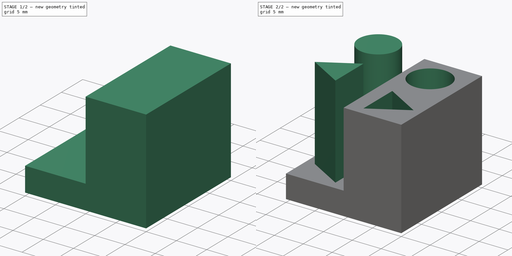
[diagram: build sequence overview — one tinted view per stage of 2, left to right]
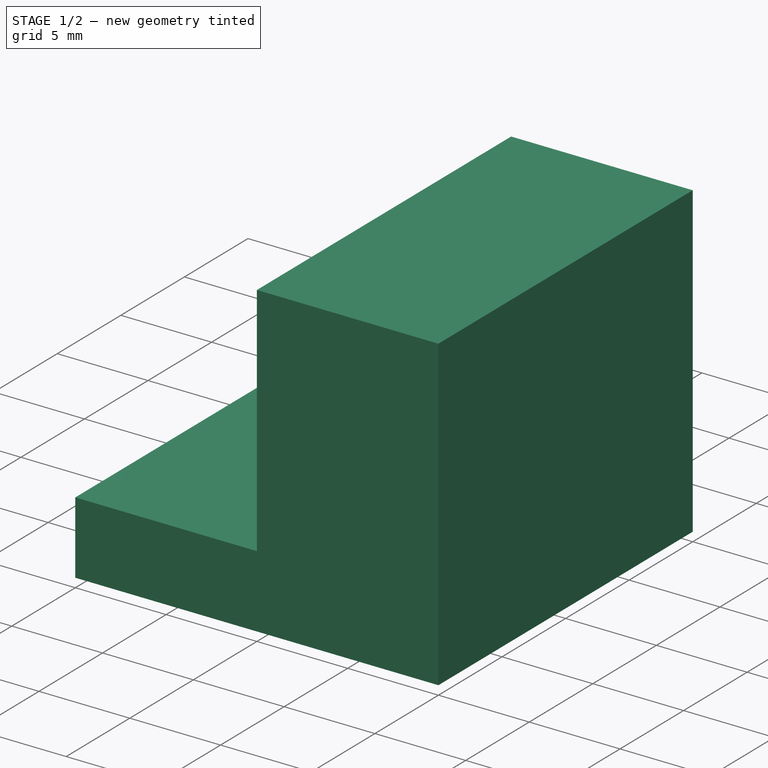
[diagram: stage 1 of 2 — iso view after this stage's code; geometry added in this stage tinted green]
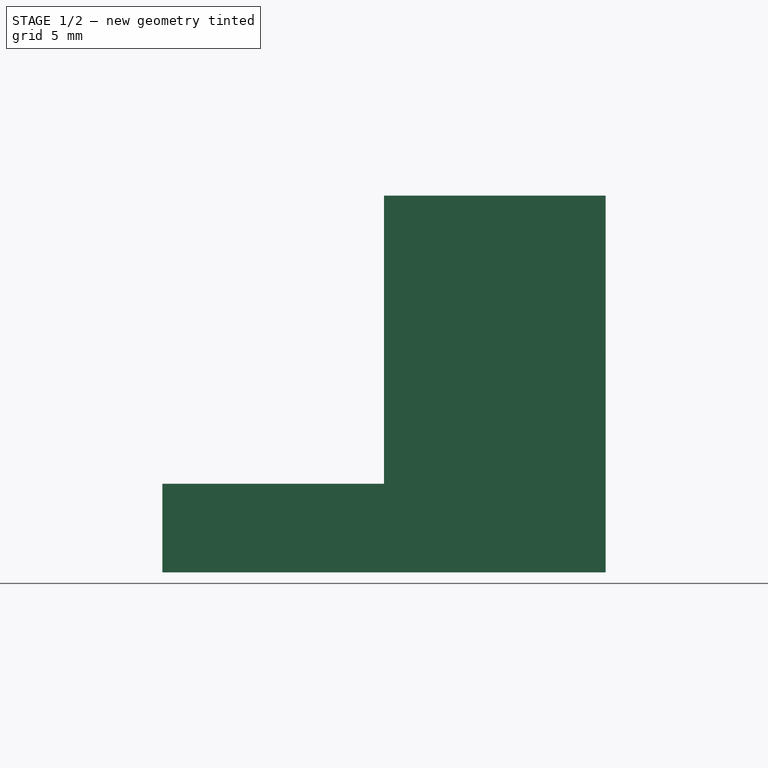
[diagram: stage 1 of 2 — front view after this stage's code; geometry added in this stage tinted green]
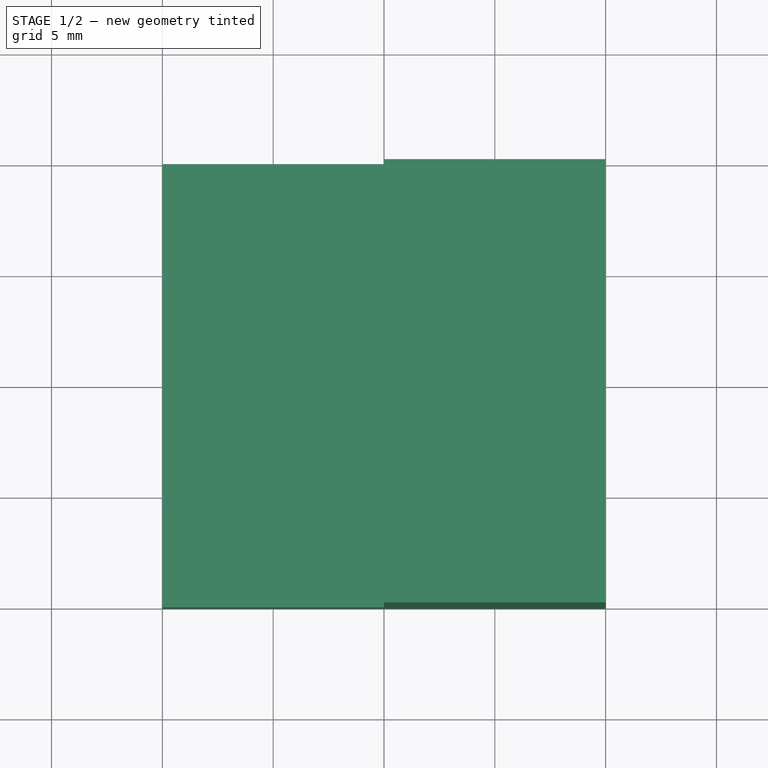
[diagram: stage 1 of 2 — top view after this stage's code; geometry added in this stage tinted green]
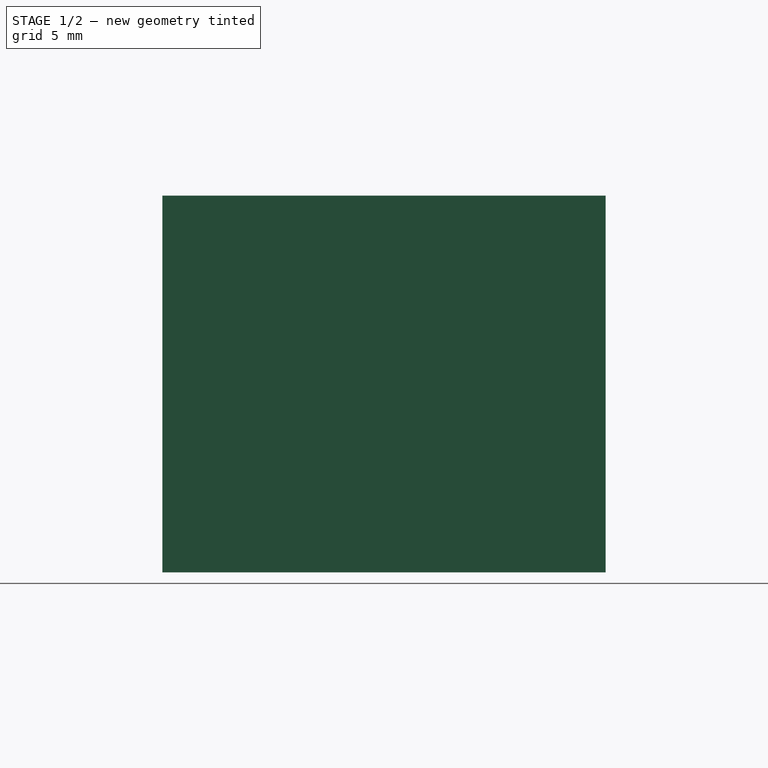
[diagram: stage 1 of 2 — right view after this stage's code; geometry added in this stage tinted green]
FCSTD DOCUMENT  (FreeCAD 0.14R2800 (Git))
Label: test-part
License: CC-BY 3.0
LicenseURL: http://creativecommons.org/licenses/by/3.0/
objects: Sketcher::SketchObject×4, PartDesign::Pad×3, PartDesign::Pocket×1
note: 12 computed .brp shape members not serialized (recipe doc carries the construction recipe); baked Part::Feature solids carry a one-line shape summary decoded from their .brp

FEATURE [Sketcher::SketchObject] Sketch  label="Base"
  sketch-geometry (4):
    g0: LineSegment StartX=-10 StartY=10 StartZ=0 EndX=10 EndY=10 EndZ=0
    g1: LineSegment StartX=10 StartY=10 StartZ=0 EndX=10 EndY=-10 EndZ=0
    g2: LineSegment StartX=10 StartY=-10 StartZ=0 EndX=-10 EndY=-10 EndZ=0
    g3: LineSegment StartX=-10 StartY=-10 StartZ=0 EndX=-10 EndY=10 EndZ=0
  constraints (12):
    c: Coincident(g0,g1)
    c: Coincident(g1,g2)
    c: Coincident(g2,g3)
    c: Coincident(g3,g0)
    c: Horizontal(g0)
    c: Vertical(g1)
    c: Equal(g0,g1)
    c: Equal(g1,g2)
    c: Equal(g2,g3)
    c: Symmetric(g1,g0,g-1)
    c: Symmetric(g0,g0,g-2)
    c: DistanceY(g1) = -20
FEATURE [PartDesign::Pad] Pad  label="Base-pad"
  Length = 4
  Length2 = 100
  Sketch = -> Sketch
  Type = 0
FEATURE [Sketcher::SketchObject] Sketch001  label="Surround"
  ExternalGeometry = -> [Pad]
  Placement = pos=(0,0,4) rot=(0,0,1;0rad)
  Support = -> Pad [Face6]
  sketch-geometry (4):
    g0: LineSegment StartX=0 StartY=10 StartZ=0 EndX=10 EndY=10 EndZ=0
    g1: LineSegment StartX=10 StartY=10 StartZ=0 EndX=10 EndY=-10 EndZ=0
    g2: LineSegment StartX=10 StartY=-10 StartZ=0 EndX=0 EndY=-10 EndZ=0
    g3: LineSegment StartX=0 StartY=-10 StartZ=0 EndX=0 EndY=10 EndZ=0
  constraints (10):
    c: Coincident(g0,g1)
    c: Coincident(g1,g2)
    c: Coincident(g2,g3)
    c: Coincident(g3,g0)
    c: Coincident(g0,g-3)
    c: Coincident(g1,g-3)
    c: Horizontal(g0)
    c: Horizontal(g2)
    c: Vertical(g3)
    c: DistanceX(g-1,g0) = 0
FEATURE [PartDesign::Pad] Pad001  label="Surround-pad"
  Length = 13
  Length2 = 100
  Sketch = -> Sketch001
  Type = 0
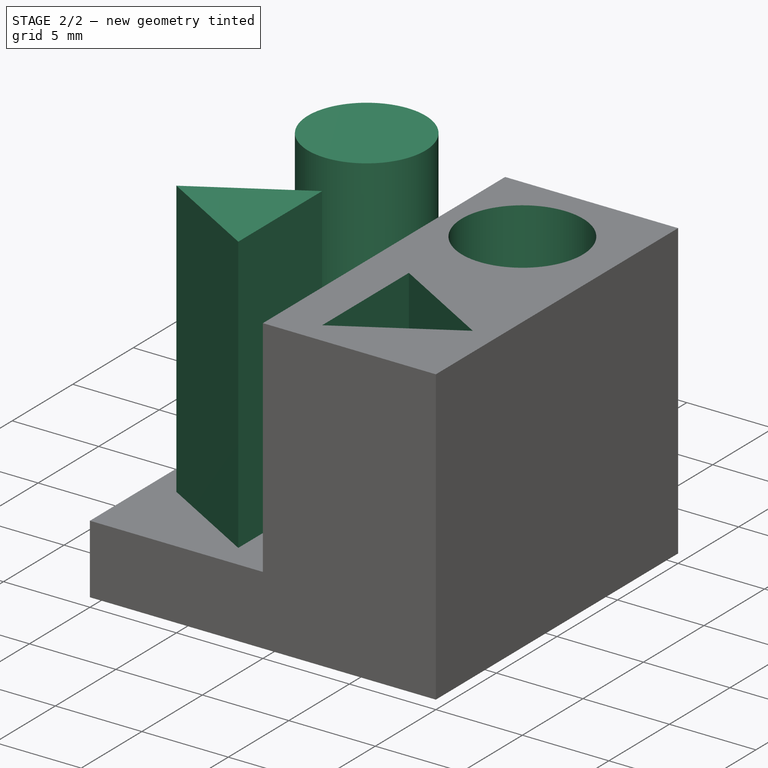
[diagram: stage 2 of 2 — iso view after this stage's code; geometry added in this stage tinted green]
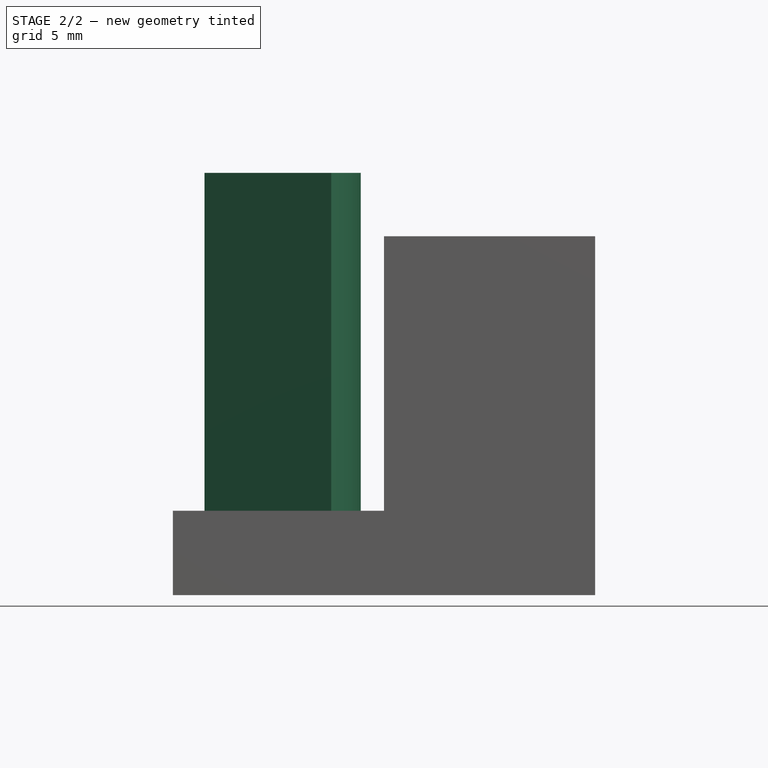
[diagram: stage 2 of 2 — front view after this stage's code; geometry added in this stage tinted green]
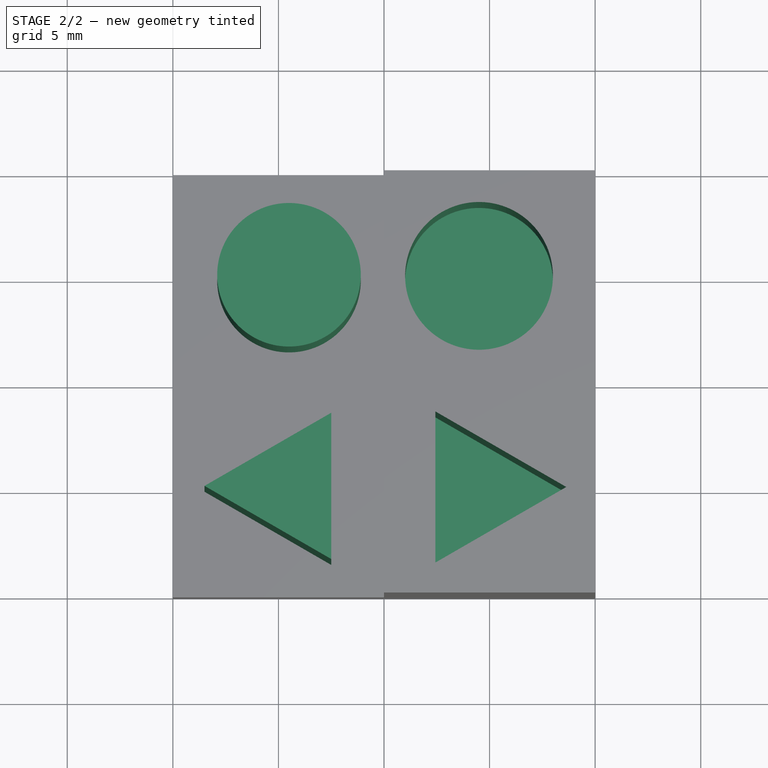
[diagram: stage 2 of 2 — top view after this stage's code; geometry added in this stage tinted green]
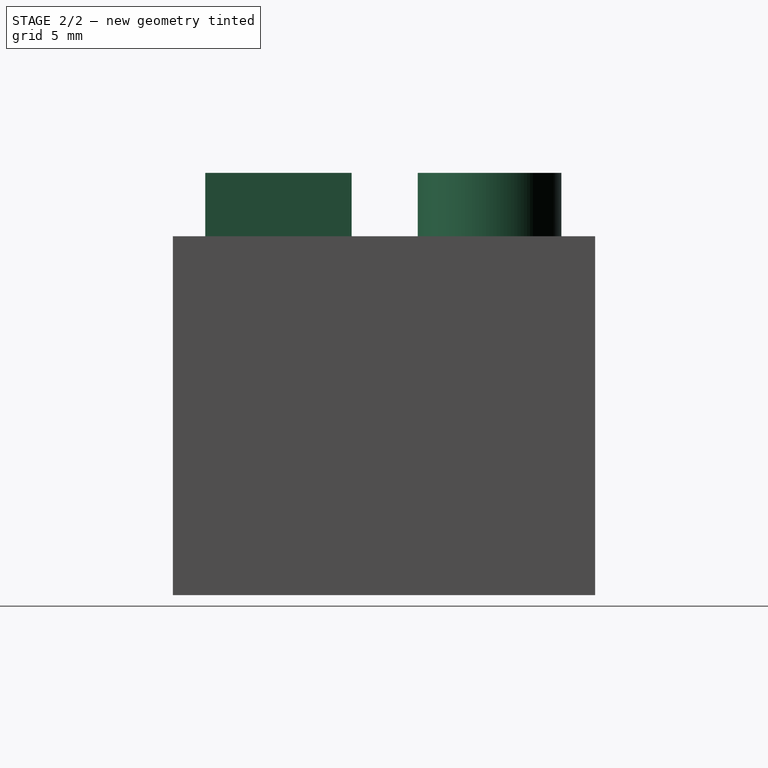
[diagram: stage 2 of 2 — right view after this stage's code; geometry added in this stage tinted green]
FEATURE [Sketcher::SketchObject] Sketch002  label="Towers"
  Placement = pos=(0,0,4) rot=(0,0,1;0rad)
  Support = -> Pad001 [Face5]
  sketch-geometry (7):
    g0: Circle CenterX=-4.5 CenterY=5 CenterZ=0 NormalX=0 NormalY=0 NormalZ=1 Radius=3.4
    g1: LineSegment StartX=-8.5 StartY=-5 StartZ=0 EndX=-2.5 EndY=-1.5359 EndZ=0
    g2: LineSegment StartX=-2.5 StartY=-1.5359 StartZ=0 EndX=-2.5 EndY=-8.4641 EndZ=0
    g3: LineSegment StartX=-2.5 StartY=-8.4641 StartZ=0 EndX=-8.5 EndY=-5 EndZ=0
    g4: LineSegment [constr] StartX=-8.5 StartY=-5 StartZ=0 EndX=-2.5 EndY=-5 EndZ=0
    g5: LineSegment [constr] StartX=-5.5 StartY=-6.73205 StartZ=0 EndX=-2.5 EndY=-1.5359 EndZ=0
    g6: GeomPoint [constr] X=-4.5 Y=-5 Z=0
  constraints (19):
    c: Coincident(g1,g2)
    c: Coincident(g2,g3)
    c: Coincident(g1,g3)
    c: Radius(g0) = 3.4
    c: Vertical(g2)
    c: Equal(g3,g1)
    c: Equal(g1,g2)
    c: Coincident(g1,g4)
    c: PointOnObject(g4,g2)
    c: Horizontal(g4)
    c: Coincident(g1,g5)
    c: PointOnObject(g5,g3)
    c: Perpendicular(g5,g3)
    c: PointOnObject(g6,g5)
    c: PointOnObject(g6,g4)
    c: DistanceX(g4) = 6
    c: Symmetric(g6,g0,g-1)
    c: DistanceY(g-1,g0) = 5
    c: DistanceX(g-1,g0) = -4.5
FEATURE [PartDesign::Pad] Pad002  label="Towers-pad"
  Length = 16
  Length2 = 100
  Sketch = -> Sketch002
  Type = 0
FEATURE [Sketcher::SketchObject] Sketch003  label="Holes"
  Placement = pos=(0,0,17) rot=(0,0,1;0rad)
  Support = -> Pad002 [Face15]
  sketch-geometry (7):
    g0: Circle CenterX=4.5 CenterY=5 CenterZ=0 NormalX=0 NormalY=0 NormalZ=1 Radius=3.5
    g1: LineSegment StartX=2.43333 StartY=-1.42043 StartZ=0 EndX=2.43333 EndY=-8.57957 EndZ=0
    g2: LineSegment StartX=2.43333 StartY=-8.57957 StartZ=0 EndX=8.63333 EndY=-5 EndZ=0
    g3: LineSegment StartX=8.63333 StartY=-5 StartZ=0 EndX=2.43333 EndY=-1.42043 EndZ=0
    g4: LineSegment [constr] StartX=2.43333 StartY=-1.42043 StartZ=0 EndX=5.53333 EndY=-6.78979 EndZ=0
    g5: LineSegment [constr] StartX=2.43333 StartY=-5 StartZ=0 EndX=8.63333 EndY=-5 EndZ=0
    g6: GeomPoint [constr] X=4.5 Y=-5 Z=0
  constraints (19):
    c: Radius(g0) = 3.5
    c: Coincident(g1,g2)
    c: Coincident(g2,g3)
    c: Coincident(g1,g3)
    c: Coincident(g1,g4)
    c: PointOnObject(g5,g1)
    c: Perpendicular(g5,g1)
    c: PointOnObject(g4,g2)
    c: Perpendicular(g4,g2)
    c: Coincident(g5,g2)
    c: Vertical(g1)
    c: Equal(g3,g2)
    c: Equal(g2,g1)
    c: PointOnObject(g6,g5)
    c: PointOnObject(g6,g4)
    c: Symmetric(g6,g0,g-1)
    c: DistanceX(g5) = 6.2
    c: DistanceX(g-1,g0) = 4.5
    c: DistanceY(g-1,g0) = 5
FEATURE [PartDesign::Pocket] Pocket  label="Holes-pocket"
  Length = 16.2
  Sketch = -> Sketch003
  Type = 0
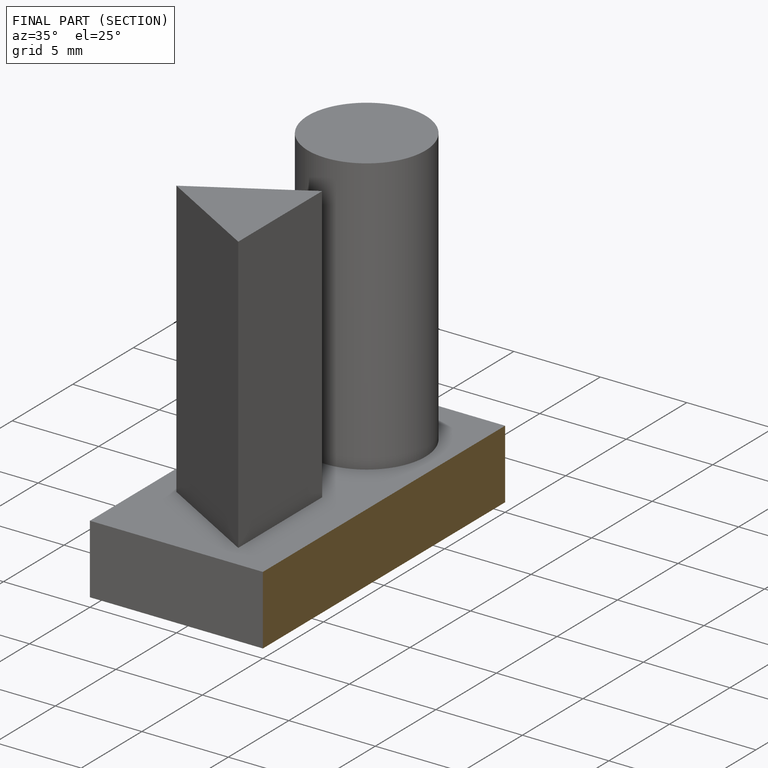
[diagram: finished part — half-section view (interior)]
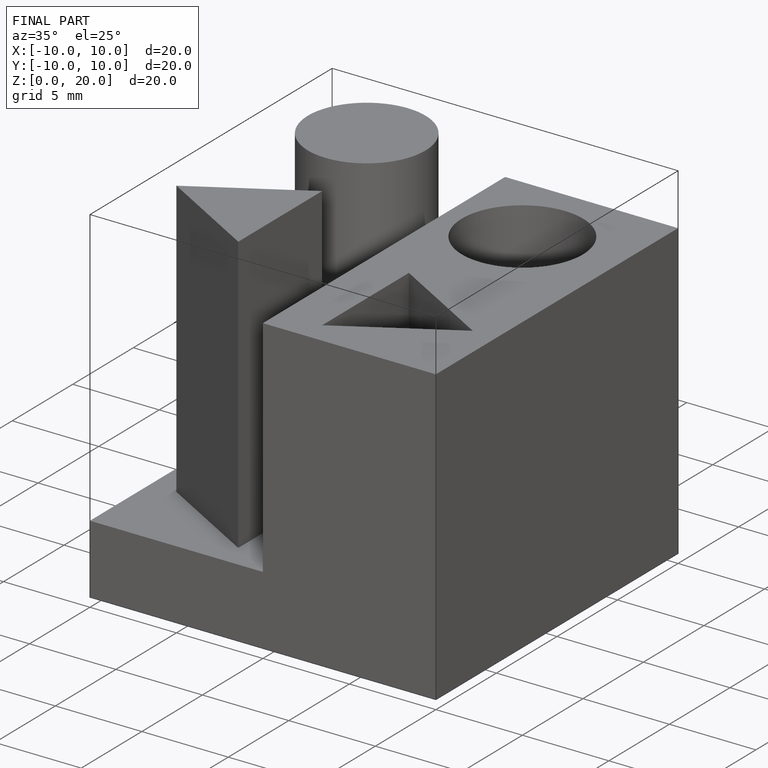
[diagram: finished part — iso view with bounding-box wireframe]
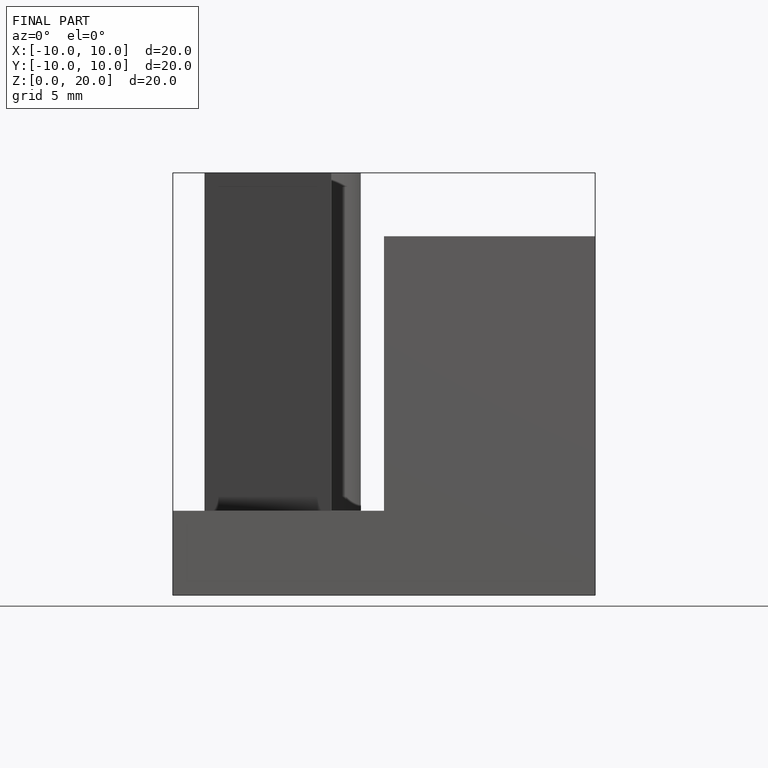
[diagram: finished part — front view with bounding-box wireframe]
